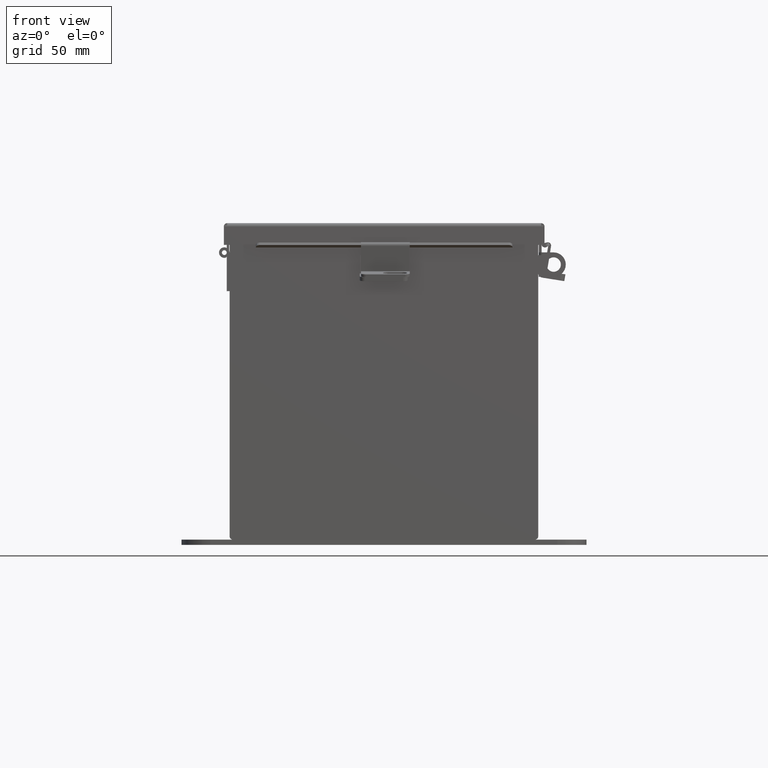
[diagram: clean part render]
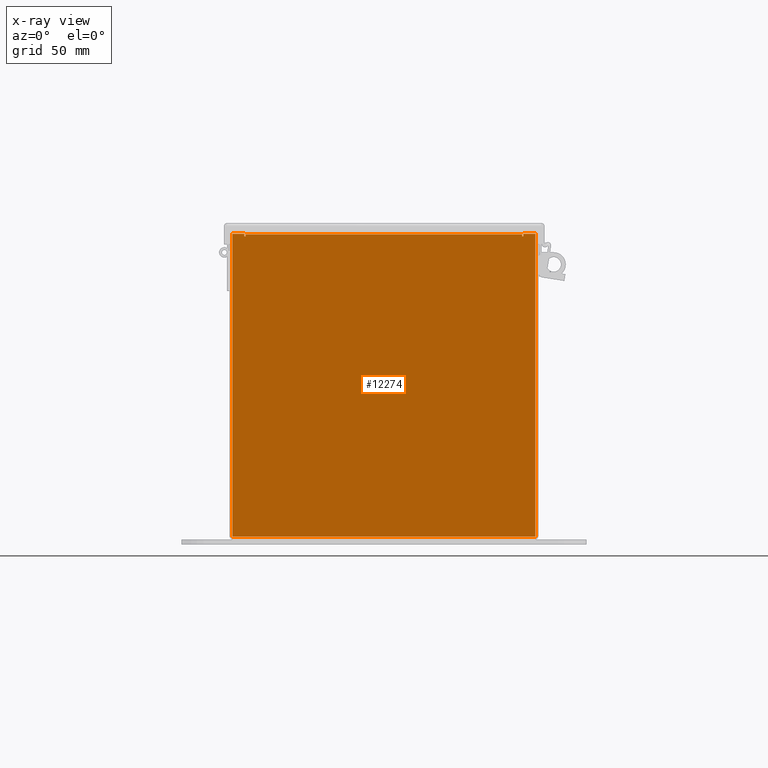
[diagram: x-ray — body ghosted, one internal face saturated and labeled with its STEP entity id]
A machine part, front view, then the same camera in x-ray: the body is ghosted and one INTERNAL B-rep face — a face not visible from any outside direction — is saturated and labeled: STEP entity #12274.
In plain terms, the highlighted planar face has unit normal (-0, 1, -0).
Its self-contained STEP definition (entity closure, byte-faithful):
#264 = VECTOR ( 'NONE', #5370, 39.37007874015748100 ) ;
#445 = FACE_OUTER_BOUND ( 'NONE', #6106, .T. ) ;
#568 = VECTOR ( 'NONE', #11327, 39.37007874015748100 ) ;
#569 = CARTESIAN_POINT ( 'NONE',  ( -3.619649999999994300, -0.07469999999999907300, 3.874949999999999200 ) ) ;
#635 = EDGE_CURVE ( 'NONE', #1946, #7939, #5765, .T. ) ;
#1257 = DIRECTION ( 'NONE',  ( -1.000000000000000000, -1.230560758958866800E-030, 0.0000000000000000000 ) ) ;
#1278 = CARTESIAN_POINT ( 'NONE',  ( -3.582299999999994300, -0.07469999999999907300, 3.874949999999999200 ) ) ;
#1535 = CARTESIAN_POINT ( 'NONE',  ( -3.925300000000005300, -0.07470000000000015500, 3.925300000000000500 ) ) ;
#1691 = LINE ( 'NONE', #5026, #10489 ) ;
#1743 = ORIENTED_EDGE ( 'NONE', *, *, #5488, .F. ) ;
#1910 = ORIENTED_EDGE ( 'NONE', *, *, #3424, .F. ) ;
#1946 = VERTEX_POINT ( 'NONE', #12140 ) ;
#2324 = ORIENTED_EDGE ( 'NONE', *, *, #15510, .F. ) ;
#2425 = CIRCLE ( 'NONE', #9826, 0.01867500000000003900 ) ;
#2529 = ORIENTED_EDGE ( 'NONE', *, *, #14264, .F. ) ;
#2812 = DIRECTION ( 'NONE',  ( 1.000000000000000000, 1.230560758958866800E-030, 0.0000000000000000000 ) ) ;
#3085 = ORIENTED_EDGE ( 'NONE', *, *, #3544, .F. ) ;
#3424 = EDGE_CURVE ( 'NONE', #3810, #8220, #11514, .T. ) ;
#3544 = EDGE_CURVE ( 'NONE', #8220, #15421, #3625, .T. ) ;
#3600 = EDGE_CURVE ( 'NONE', #7565, #12805, #8846, .T. ) ;
#3625 = LINE ( 'NONE', #11610, #9593 ) ;
#3794 = DIRECTION ( 'NONE',  ( -1.230560758958866800E-030, -1.000000000000000000, 0.0000000000000000000 ) ) ;
#3810 = VERTEX_POINT ( 'NONE', #1535 ) ;
#4101 = LINE ( 'NONE', #5292, #568 ) ;
#4362 = VERTEX_POINT ( 'NONE', #12699 ) ;
#4423 = EDGE_CURVE ( 'NONE', #10043, #7565, #5455, .T. ) ;
#4902 = DIRECTION ( 'NONE',  ( -1.230560758958866800E-030, -1.000000000000000000, -0.0000000000000000000 ) ) ;
#5026 = CARTESIAN_POINT ( 'NONE',  ( -3.925300000000005300, -0.07470000000000015500, 3.925300000000000500 ) ) ;
#5121 = DIRECTION ( 'NONE',  ( 0.0000000000000000000, 0.0000000000000000000, -1.000000000000000000 ) ) ;
#5242 = DIRECTION ( 'NONE',  ( 0.0000000000000000000, 1.186875369640613200E-014, -1.000000000000000000 ) ) ;
#5292 = CARTESIAN_POINT ( 'NONE',  ( -3.925300000000005300, -0.07470000000000015500, 3.925300000000000500 ) ) ;
#5370 = DIRECTION ( 'NONE',  ( 0.0000000000000000000, 0.0000000000000000000, 1.000000000000000000 ) ) ;
#5455 = CIRCLE ( 'NONE', #6592, 0.01867500000000003900 ) ;
#5488 = EDGE_CURVE ( 'NONE', #7330, #4362, #10132, .T. ) ;
#5666 = VECTOR ( 'NONE', #7984, 39.37007874015748100 ) ;
#5765 = LINE ( 'NONE', #8352, #14227 ) ;
#6085 = DIRECTION ( 'NONE',  ( 0.0000000000000000000, 0.0000000000000000000, -1.000000000000000000 ) ) ;
#6106 = EDGE_LOOP ( 'NONE', ( #8209, #3085, #1910, #2529, #6645, #2324, #9103, #6986, #15174, #9845, #1743, #13207 ) ) ;
#6223 = LINE ( 'NONE', #11357, #264 ) ;
#6319 = CARTESIAN_POINT ( 'NONE',  ( 3.582300000000004900, -0.07469999999997831200, 3.874949999999999200 ) ) ;
#6592 = AXIS2_PLACEMENT_3D ( 'NONE', #15192, #3794, #7364 ) ;
#6645 = ORIENTED_EDGE ( 'NONE', *, *, #635, .F. ) ;
#6730 = EDGE_CURVE ( 'NONE', #15421, #14611, #2425, .T. ) ;
#6859 = EDGE_CURVE ( 'NONE', #12805, #14873, #1691, .T. ) ;
#6986 = ORIENTED_EDGE ( 'NONE', *, *, #3600, .F. ) ;
#7222 = DIRECTION ( 'NONE',  ( -1.230560758958866800E-030, -1.000000000000000000, 0.0000000000000000000 ) ) ;
#7330 = VERTEX_POINT ( 'NONE', #15343 ) ;
#7364 = DIRECTION ( 'NONE',  ( 0.0000000000000000000, 0.0000000000000000000, -1.000000000000000000 ) ) ;
#7565 = VERTEX_POINT ( 'NONE', #12227 ) ;
#7818 = VECTOR ( 'NONE', #11456, 39.37007874015748100 ) ;
#7939 = VERTEX_POINT ( 'NONE', #10447 ) ;
#7984 = DIRECTION ( 'NONE',  ( 2.170286390199978800E-014, -1.186875369640613200E-014, 1.000000000000000000 ) ) ;
#8063 = CARTESIAN_POINT ( 'NONE',  ( 3.925299999999994200, -0.07469999999997831200, 3.925299999999999100 ) ) ;
#8146 = DIRECTION ( 'NONE',  ( 1.000000000000000000, 1.230560758958866800E-030, -0.0000000000000000000 ) ) ;
#8196 = LINE ( 'NONE', #8724, #11386 ) ;
#8209 = ORIENTED_EDGE ( 'NONE', *, *, #6730, .F. ) ;
#8220 = VERTEX_POINT ( 'NONE', #9803 ) ;
#8352 = CARTESIAN_POINT ( 'NONE',  ( -3.925300000000005300, -0.07470000000000015500, -3.925299999999999600 ) ) ;
#8451 = CARTESIAN_POINT ( 'NONE',  ( 0.0000000000000000000, -0.07470000000000015500, 0.0000000000000000000 ) ) ;
#8659 = VECTOR ( 'NONE', #2812, 39.37007874015748100 ) ;
#8724 = CARTESIAN_POINT ( 'NONE',  ( 3.582299999999994300, -0.07469999999997721500, 3.912299999999997900 ) ) ;
#8846 = LINE ( 'NONE', #14362, #5666 ) ;
#8985 = EDGE_CURVE ( 'NONE', #4362, #10043, #8196, .T. ) ;
#9103 = ORIENTED_EDGE ( 'NONE', *, *, #6859, .F. ) ;
#9593 = VECTOR ( 'NONE', #5242, 39.37007874015748100 ) ;
#9669 = PLANE ( 'NONE',  #14791 ) ;
#9787 = CARTESIAN_POINT ( 'NONE',  ( -3.582300000000004900, -0.07469999999999797600, 3.912299999999999200 ) ) ;
#9803 = CARTESIAN_POINT ( 'NONE',  ( -3.619650000000005400, -0.07470000000000015500, 3.925299999999999100 ) ) ;
#9826 = AXIS2_PLACEMENT_3D ( 'NONE', #15353, #7222, #6085 ) ;
#9845 = ORIENTED_EDGE ( 'NONE', *, *, #8985, .F. ) ;
#9917 = CARTESIAN_POINT ( 'NONE',  ( 3.619649999999995100, -0.07469999999997831200, 3.925300000000000500 ) ) ;
#10043 = VERTEX_POINT ( 'NONE', #6319 ) ;
#10050 = DIRECTION ( 'NONE',  ( 1.000000000000000000, 1.230560758958866800E-030, 0.0000000000000000000 ) ) ;
#10132 = LINE ( 'NONE', #9787, #10515 ) ;
#10282 = CARTESIAN_POINT ( 'NONE',  ( 3.925299999999994200, -0.07469999999997831200, 3.925299999999999100 ) ) ;
#10447 = CARTESIAN_POINT ( 'NONE',  ( -3.925300000000005300, -0.07470000000000015500, -3.925299999999999600 ) ) ;
#10489 = VECTOR ( 'NONE', #10050, 39.37007874015748100 ) ;
#10515 = VECTOR ( 'NONE', #8146, 39.37007874015748100 ) ;
#11327 = DIRECTION ( 'NONE',  ( 0.0000000000000000000, 0.0000000000000000000, 1.000000000000000000 ) ) ;
#11357 = CARTESIAN_POINT ( 'NONE',  ( -3.582299999999994300, -0.07469999999999797600, 3.874949999999999200 ) ) ;
#11386 = VECTOR ( 'NONE', #5121, 39.37007874015748100 ) ;
#11456 = DIRECTION ( 'NONE',  ( 0.0000000000000000000, 0.0000000000000000000, -1.000000000000000000 ) ) ;
#11514 = LINE ( 'NONE', #12682, #8659 ) ;
#11610 = CARTESIAN_POINT ( 'NONE',  ( -3.619650000000005400, -0.07469999999999907300, 3.925299999999999100 ) ) ;
#12140 = CARTESIAN_POINT ( 'NONE',  ( 3.925299999999994200, -0.07469999999997831200, -3.925299999999999600 ) ) ;
#12227 = CARTESIAN_POINT ( 'NONE',  ( 3.619650000000005400, -0.07469999999997831200, 3.874949999999999200 ) ) ;
#12274 = ADVANCED_FACE ( 'NONE', ( #445 ), #9669, .T. ) ;
#12563 = EDGE_CURVE ( 'NONE', #14611, #7330, #6223, .T. ) ;
#12682 = CARTESIAN_POINT ( 'NONE',  ( -3.925300000000005300, -0.07470000000000015500, 3.925300000000000500 ) ) ;
#12699 = CARTESIAN_POINT ( 'NONE',  ( 3.582299999999994300, -0.07469999999997831200, 3.912299999999997900 ) ) ;
#12805 = VERTEX_POINT ( 'NONE', #9917 ) ;
#13207 = ORIENTED_EDGE ( 'NONE', *, *, #12563, .F. ) ;
#13311 = DIRECTION ( 'NONE',  ( 0.0000000000000000000, 0.0000000000000000000, -1.000000000000000000 ) ) ;
#14226 = LINE ( 'NONE', #10282, #7818 ) ;
#14227 = VECTOR ( 'NONE', #1257, 39.37007874015748100 ) ;
#14264 = EDGE_CURVE ( 'NONE', #7939, #3810, #4101, .T. ) ;
#14362 = CARTESIAN_POINT ( 'NONE',  ( 3.619650000000005400, -0.07469999999997721500, 3.874949999999999200 ) ) ;
#14611 = VERTEX_POINT ( 'NONE', #1278 ) ;
#14791 = AXIS2_PLACEMENT_3D ( 'NONE', #8451, #4902, #13311 ) ;
#14873 = VERTEX_POINT ( 'NONE', #8063 ) ;
#15174 = ORIENTED_EDGE ( 'NONE', *, *, #4423, .F. ) ;
#15192 = CARTESIAN_POINT ( 'NONE',  ( 3.600975000000005400, -0.07469999999997721500, 3.874949999999999200 ) ) ;
#15343 = CARTESIAN_POINT ( 'NONE',  ( -3.582300000000004900, -0.07470000000000015500, 3.912299999999999200 ) ) ;
#15353 = CARTESIAN_POINT ( 'NONE',  ( -3.600974999999994300, -0.07469999999999797600, 3.874949999999999200 ) ) ;
#15421 = VERTEX_POINT ( 'NONE', #569 ) ;
#15510 = EDGE_CURVE ( 'NONE', #14873, #1946, #14226, .T. ) ;